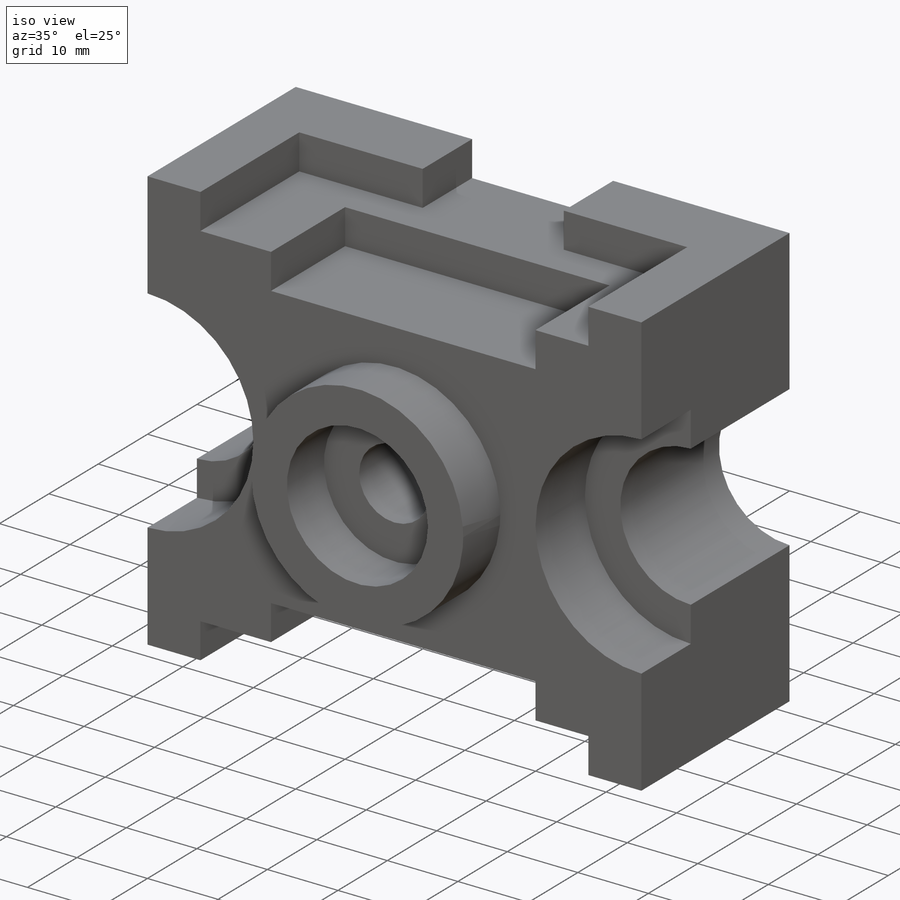
[diagram: iso view]
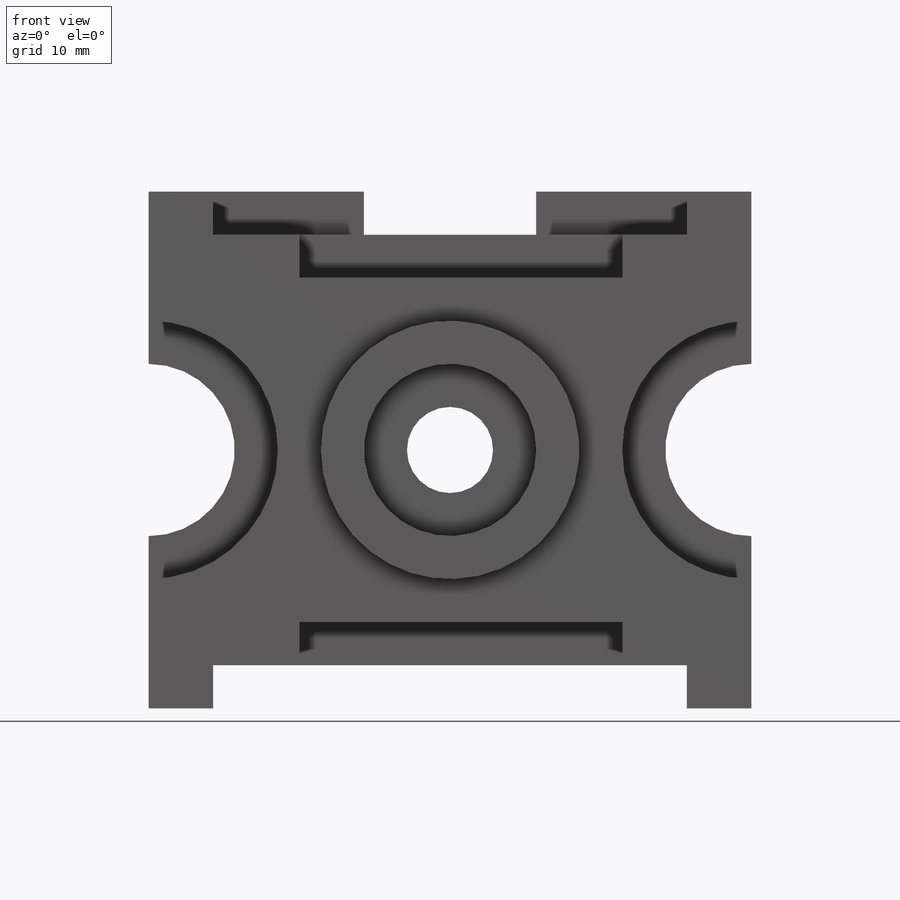
[diagram: front view]
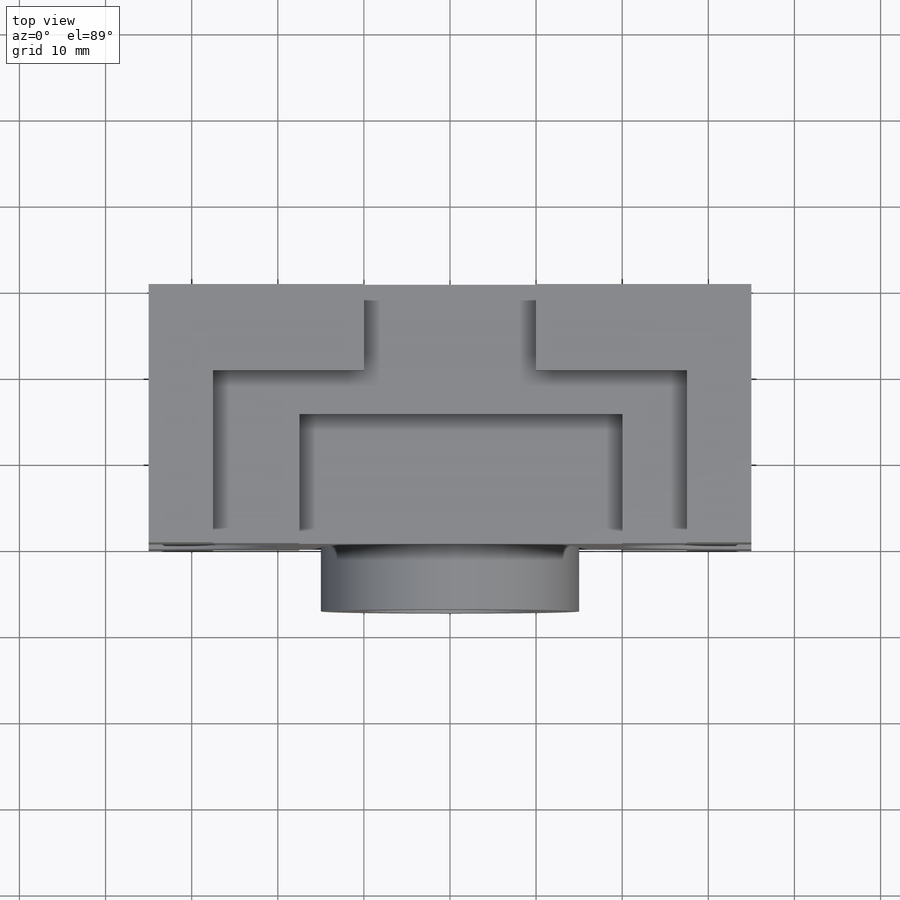
[diagram: top view]
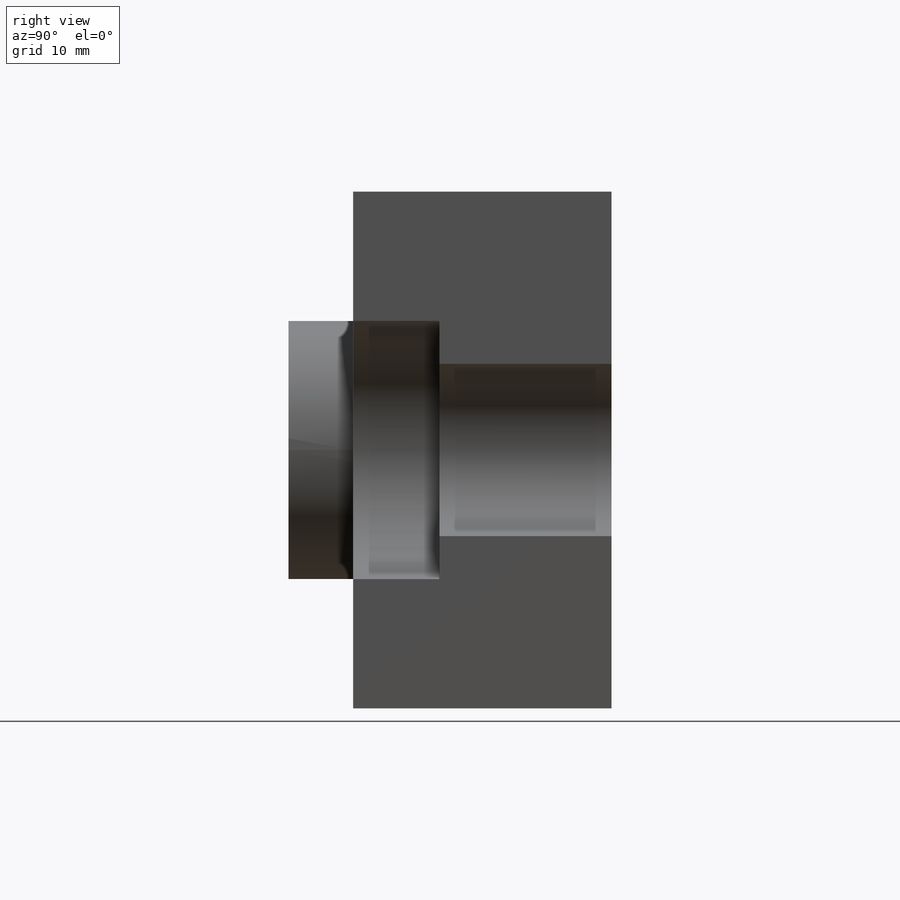
[diagram: right view]
SOLIDWORKS PART (.sldprt)
format: sldprt  version: not decoded by parser v0  size: 379,392 bytes
history: native  units: mm
features: sketch x14, cut_extrude x8, extrude x6, material x1 (+13 scaffold rows collapsed)
feature tree (42):
  scaffold x13  (default folders/planes/origin — collapsed)
  material  "Material <not specified>"
  sketch  "Sketch1"  dims[D1=7.5mm D2=5.0mm D3=7.5mm D4=7.5mm D5=5.0mm D6=50.0mm]
  extrude  "Boss-Extrude1"  Depth=30mm
  sketch  "Sketch3"  dims[c1.D1=~8.380402mm c1.D2=10.0mm c2.D1=20.0mm c2.D3=20.0mm]
  cut_extrude  "Cut-Extrude7"  Depth=20mm
  sketch  "Sketch5"  dims[D1=17.5mm 10=10.0mm]
  extrude  "Boss-Extrude2"  Depth=5mm
  sketch  "Sketch6"  dims[c1.D1=50.0mm c1.D2=~57.207521mm c2.D1=40.0mm]
  extrude  "Boss-Extrude3"  Depth=30mm
  sketch  "Sketch7"  dims[D1=5.0mm D2=37.5mm]
  cut_extrude  "Cut-Extrude11"  Depth=15mm
  sketch  "Sketch8"  dims[D1=37.5mm D2=5.0mm]
  cut_extrude  "Cut-Extrude12"  Depth=15mm
  sketch  "Sketch9"  dims[D1=15.0mm D2=15.0mm D3=30.0mm]
  cut_extrude  "Cut-Extrude13"  Depth=10mm
  sketch  "Sketch10"  dims[30=30.0mm D2=20.0mm D3=20.0mm]
  extrude  "Boss-Extrude4"  Depth=7.5mm
  sketch  "Sketch11"  dims[10=20.0mm]
  cut_extrude  "Cut-Extrude14"  Depth=7.5mm
  sketch  "Sketch12"  dims[D1=10.0mm]
  cut_extrude  "Cut-Extrude15"  Depth=153.5mm
  sketch  "Sketch13"  dims[D1=50.0mm D2=7.5mm D3=7.5mm D4=5.0mm D5=5.0mm D6=7.5mm D7=7.5mm]
  extrude  "Boss-Extrude5"  Depth=30mm
  sketch  "Sketch14"  dims[D1=10.0mm D2=17.5mm]
  extrude  "Boss-Extrude6"  Depth=5mm
  sketch  "Sketch15"  dims[D1=20.0mm D2=20.0mm D3=20.0mm]
  cut_extrude  "Cut-Extrude16"  Depth=20mm
  sketch  "Sketch16"  dims[c1.D1=~13.737193mm c1.D3=15.0mm c2.D1=15.0mm c2.D2=15.0mm c2.D4=30.0mm]
  cut_extrude  "Cut-Extrude17"  Depth=10mm
decode coverage: 28 of 28 modeling features carry decoded parameters
note: ~ marks probable driven/reference dimensions
note: suppression state not decoded; provenance and decode notes live in map.json
